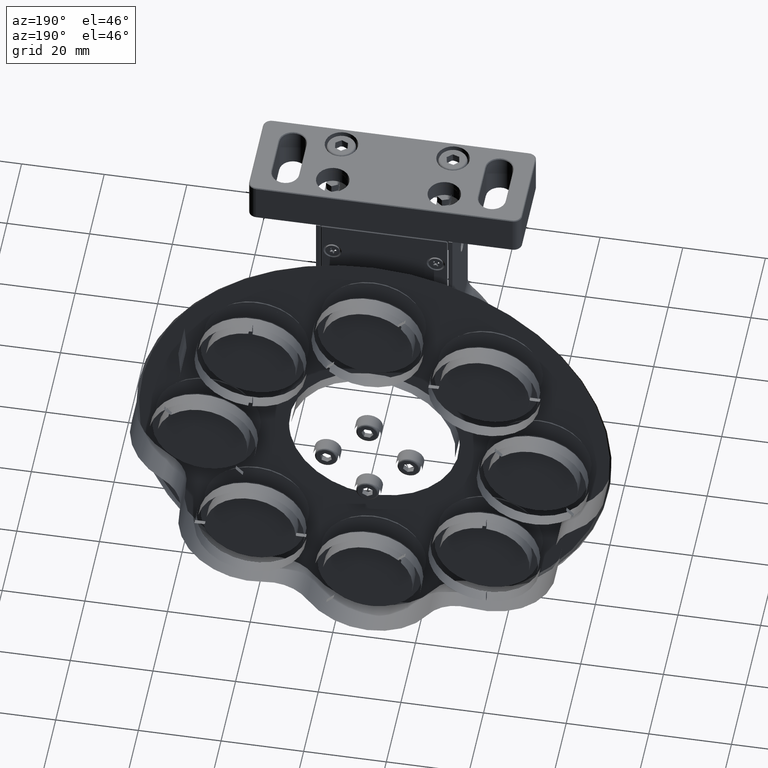
[diagram: clean part render]
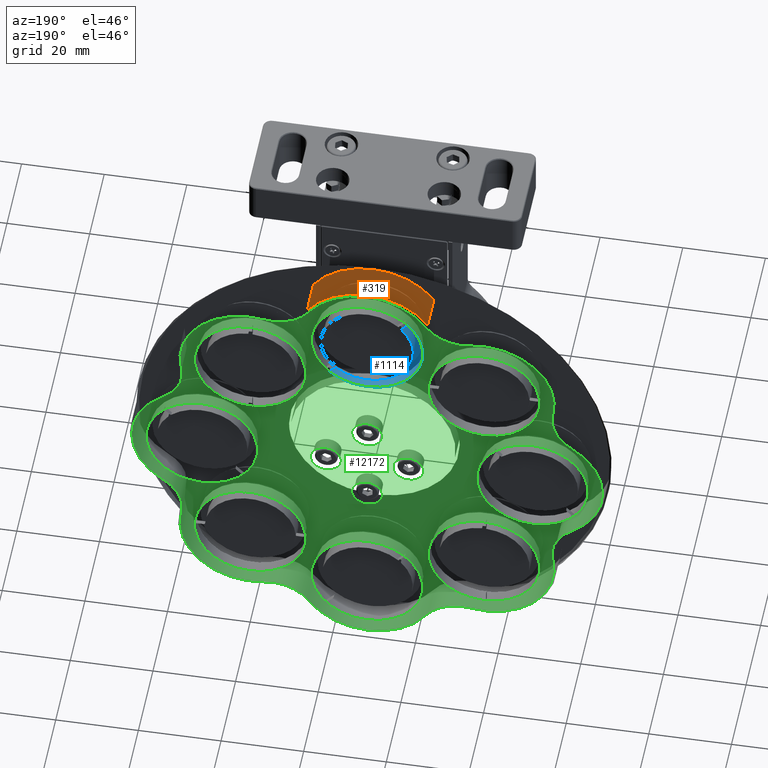
[diagram: same view with three faces highlighted in distinct colors, each labeled with its STEP entity id]
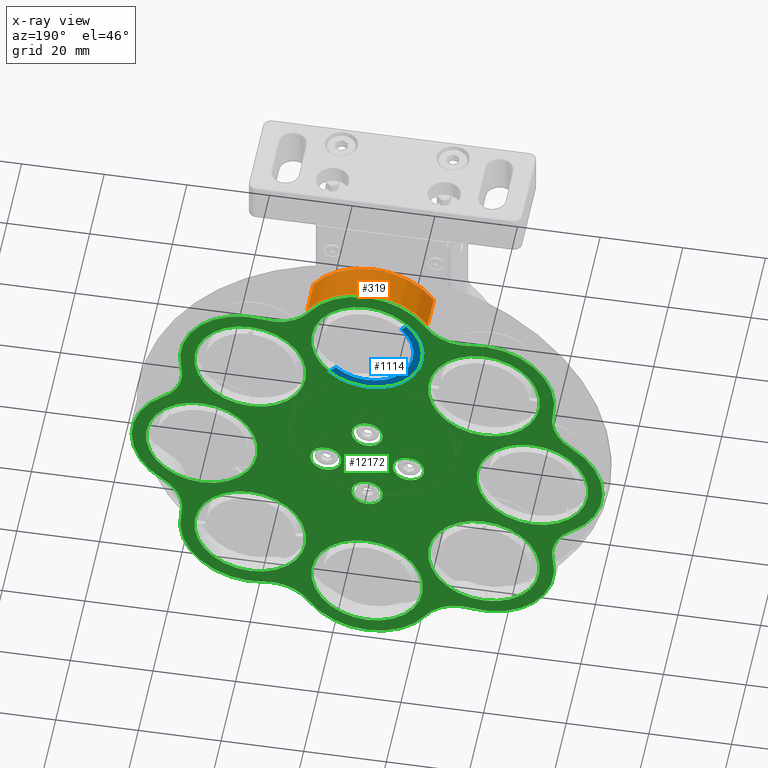
[diagram: x-ray of the same camera — body ghosted, the three highlighted faces saturated]
A machine part, auxiliary view with three faces highlighted in distinct colors.
The next image is the same camera in x-ray (body ghosted, the three faces saturated) — at least one of them is partly hidden behind the body in this view.
Their STEP definitions:

[orange] entity #319 — the highlighted cylindrical surface (partial cylindrical patch) has radius 17.5 mm, axis along (-0, 1, 0).
#319 = ADVANCED_FACE ( 'NONE', ( #4804 ), #15192, .F. ) ;
#325 = LINE ( 'NONE', #6182, #2610 ) ;
#646 = CARTESIAN_POINT ( 'NONE',  ( -28.43780630113397123, 31.75879132876270461, 109.9999999999999858 ) ) ;
#1087 = EDGE_CURVE ( 'NONE', #18098, #9240, #13332, .T. ) ;
#1279 = ORIENTED_EDGE ( 'NONE', *, *, #10703, .T. ) ;
#1571 = CARTESIAN_POINT ( 'NONE',  ( -13.87469742252363325, 40.25879132876270461, 119.7039095105911173 ) ) ;
#1682 = CARTESIAN_POINT ( 'NONE',  ( -43.00091517978494693, 31.75879132876270461, 119.7039095105301101 ) ) ;
#1919 = CARTESIAN_POINT ( 'NONE',  ( -28.43780630113397123, 31.75879132876270461, 109.9999999999999858 ) ) ;
#2325 = EDGE_CURVE ( 'NONE', #15463, #18098, #8673, .T. ) ;
#2410 = ORIENTED_EDGE ( 'NONE', *, *, #5267, .F. ) ;
#2610 = VECTOR ( 'NONE', #13592, 1000.000000000000000 ) ;
#3140 = DIRECTION ( 'NONE',  ( 3.488278094132890012E-29, -1.000000000000000000, 0.000000000000000000 ) ) ;
#3735 = DIRECTION ( 'NONE',  ( -1.000000000000000000, 0.000000000000000000, 0.000000000000000000 ) ) ;
#4302 = EDGE_LOOP ( 'NONE', ( #1279, #5757, #11857, #2410, #10061 ) ) ;
#4378 = CARTESIAN_POINT ( 'NONE',  ( -28.43780630113397123, 40.25879132876270461, 109.9999999999999858 ) ) ;
#4804 = FACE_OUTER_BOUND ( 'NONE', #4302, .T. ) ;
#5267 = EDGE_CURVE ( 'NONE', #5414, #15463, #325, .T. ) ;
#5414 = VERTEX_POINT ( 'NONE', #7796 ) ;
#5757 = ORIENTED_EDGE ( 'NONE', *, *, #1087, .F. ) ;
#5901 = DIRECTION ( 'NONE',  ( 3.488278094132890012E-29, -1.000000000000000000, -0.000000000000000000 ) ) ;
#5915 = CARTESIAN_POINT ( 'NONE',  ( -43.00091517978494693, 31.75879132876270461, 119.7039095105301101 ) ) ;
#6182 = CARTESIAN_POINT ( 'NONE',  ( -13.87469742252364213, 31.75879132876270461, 119.7039095105911173 ) ) ;
#6655 = AXIS2_PLACEMENT_3D ( 'NONE', #1919, #7771, #3735 ) ;
#6956 = AXIS2_PLACEMENT_3D ( 'NONE', #646, #16610, #9303 ) ;
#7359 = DIRECTION ( 'NONE',  ( -1.000000000000000000, 0.000000000000000000, 0.000000000000000000 ) ) ;
#7771 = DIRECTION ( 'NONE',  ( -3.488278094132890012E-29, 1.000000000000000000, 0.000000000000000000 ) ) ;
#7796 = CARTESIAN_POINT ( 'NONE',  ( -13.87469742252362970, 31.75879132876270461, 119.7039095105911173 ) ) ;
#8541 = AXIS2_PLACEMENT_3D ( 'NONE', #13195, #11754, #17599 ) ;
#8673 = CIRCLE ( 'NONE', #17876, 17.50000000000000355 ) ;
#9160 = EDGE_CURVE ( 'NONE', #5414, #18571, #10021, .T. ) ;
#9240 = VERTEX_POINT ( 'NONE', #1682 ) ;
#9303 = DIRECTION ( 'NONE',  ( -1.000000000000000000, 0.000000000000000000, -3.172065784643303781E-15 ) ) ;
#10021 = CIRCLE ( 'NONE', #6956, 17.50000000000000355 ) ;
#10061 = ORIENTED_EDGE ( 'NONE', *, *, #9160, .T. ) ;
#10703 = EDGE_CURVE ( 'NONE', #18571, #9240, #14064, .T. ) ;
#11754 = DIRECTION ( 'NONE',  ( 3.488278094132890012E-29, -1.000000000000000000, -0.000000000000000000 ) ) ;
#11857 = ORIENTED_EDGE ( 'NONE', *, *, #2325, .F. ) ;
#12867 = CARTESIAN_POINT ( 'NONE',  ( -28.43780630117061747, 31.75879132876270461, 127.5000000000000000 ) ) ;
#13195 = CARTESIAN_POINT ( 'NONE',  ( -28.43780630113397123, 31.75879132876270461, 109.9999999999999858 ) ) ;
#13332 = LINE ( 'NONE', #5915, #15550 ) ;
#13592 = DIRECTION ( 'NONE',  ( -3.488278094132890012E-29, 1.000000000000000000, 0.000000000000000000 ) ) ;
#14064 = CIRCLE ( 'NONE', #8541, 17.50000000000000355 ) ;
#15192 = CYLINDRICAL_SURFACE ( 'NONE', #6655, 17.50000000000000355 ) ;
#15463 = VERTEX_POINT ( 'NONE', #1571 ) ;
#15550 = VECTOR ( 'NONE', #3140, 1000.000000000000000 ) ;
#16610 = DIRECTION ( 'NONE',  ( 3.488278094132890012E-29, -1.000000000000000000, -0.000000000000000000 ) ) ;
#17599 = DIRECTION ( 'NONE',  ( -1.000000000000000000, 0.000000000000000000, 7.930164461608259453E-16 ) ) ;
#17876 = AXIS2_PLACEMENT_3D ( 'NONE', #4378, #5901, #7359 ) ;
#18098 = VERTEX_POINT ( 'NONE', #18222 ) ;
#18222 = CARTESIAN_POINT ( 'NONE',  ( -43.00091517978494693, 40.25879132876270461, 119.7039095105301101 ) ) ;
#18571 = VERTEX_POINT ( 'NONE', #12867 ) ;

[blue] entity #1114 — the highlighted planar face has unit normal (-0, 1, -0).
#486 = VERTEX_POINT ( 'NONE', #13128 ) ;
#493 = VECTOR ( 'NONE', #8935, 1000.000000000000114 ) ;
#554 = DIRECTION ( 'NONE',  ( 0.7071067811879899745, 0.000000000000000000, -0.7071067811851051710 ) ) ;
#886 = CIRCLE ( 'NONE', #1812, 11.20000000000002949 ) ;
#1114 = ADVANCED_FACE ( 'NONE', ( #10168 ), #8994, .F. ) ;
#1142 = CARTESIAN_POINT ( 'NONE',  ( -38.33075170616002936, 40.75879132876271171, 119.1858386251536217 ) ) ;
#1401 = CIRCLE ( 'NONE', #6916, 13.50000000000000888 ) ;
#1783 = ORIENTED_EDGE ( 'NONE', *, *, #14530, .F. ) ;
#1812 = AXIS2_PLACEMENT_3D ( 'NONE', #4740, #9164, #6265 ) ;
#2182 = DIRECTION ( 'NONE',  ( -3.488278094132891133E-29, 1.000000000000000000, -9.908676466028872705E-46 ) ) ;
#2862 = DIRECTION ( 'NONE',  ( -1.000000000000000000, -3.488278094132890573E-29, 0.000000000000000000 ) ) ;
#2960 = EDGE_LOOP ( 'NONE', ( #9335, #15163, #1783, #18691 ) ) ;
#3718 = CARTESIAN_POINT ( 'NONE',  ( -28.43780630137815990, 40.75879132876270461, 110.0000000015980390 ) ) ;
#4207 = DIRECTION ( 'NONE',  ( -3.488278094132890573E-29, 1.000000000000000000, -5.605193857299268284E-45 ) ) ;
#4740 = CARTESIAN_POINT ( 'NONE',  ( -28.43780630137815990, 40.75879132876274014, 110.0000000015980390 ) ) ;
#4895 = VERTEX_POINT ( 'NONE', #18653 ) ;
#5100 = CARTESIAN_POINT ( 'NONE',  ( -20.87965949540976140, 40.75879132876272593, 101.7347464144763904 ) ) ;
#5347 = CARTESIAN_POINT ( 'NONE',  ( -38.33075170616005778, 40.75879132876271171, 119.1858386251536501 ) ) ;
#6265 = DIRECTION ( 'NONE',  ( 9.293161478447156352E-16, 0.000000000000000000, 1.000000000000000000 ) ) ;
#6424 = VECTOR ( 'NONE', #554, 1000.000000000000114 ) ;
#6700 = EDGE_CURVE ( 'NONE', #8764, #486, #16066, .T. ) ;
#6916 = AXIS2_PLACEMENT_3D ( 'NONE', #3718, #2182, #17075 ) ;
#6972 = VERTEX_POINT ( 'NONE', #1142 ) ;
#8764 = VERTEX_POINT ( 'NONE', #5100 ) ;
#8935 = DIRECTION ( 'NONE',  ( 0.7071067811880396015, 0.000000000000000000, -0.7071067811850553220 ) ) ;
#8994 = PLANE ( 'NONE',  #13087 ) ;
#9164 = DIRECTION ( 'NONE',  ( -0.000000000000000000, -1.000000000000000000, -0.000000000000000000 ) ) ;
#9335 = ORIENTED_EDGE ( 'NONE', *, *, #6700, .F. ) ;
#10077 = CARTESIAN_POINT ( 'NONE',  ( -28.43780630137815990, 40.75879132876271171, 110.0000000015980390 ) ) ;
#10168 = FACE_OUTER_BOUND ( 'NONE', #2960, .T. ) ;
#11653 = EDGE_CURVE ( 'NONE', #4895, #8764, #886, .T. ) ;
#12672 = LINE ( 'NONE', #5347, #6424 ) ;
#13087 = AXIS2_PLACEMENT_3D ( 'NONE', #10077, #4207, #2862 ) ;
#13128 = CARTESIAN_POINT ( 'NONE',  ( -19.25196767778115259, 40.75879132876270461, 100.1070545968546526 ) ) ;
#14530 = EDGE_CURVE ( 'NONE', #6972, #4895, #12672, .T. ) ;
#14626 = CARTESIAN_POINT ( 'NONE',  ( -20.87965949540985378, 40.75879132876271171, 101.7347464144764757 ) ) ;
#15163 = ORIENTED_EDGE ( 'NONE', *, *, #11653, .F. ) ;
#16066 = LINE ( 'NONE', #14626, #493 ) ;
#16629 = EDGE_CURVE ( 'NONE', #486, #6972, #1401, .T. ) ;
#17075 = DIRECTION ( 'NONE',  ( 1.000000000000000000, 0.000000000000000000, 1.027984282060329370E-15 ) ) ;
#18653 = CARTESIAN_POINT ( 'NONE',  ( -36.70305988853162660, 40.75879132876274014, 117.5581468075318838 ) ) ;
#18691 = ORIENTED_EDGE ( 'NONE', *, *, #16629, .F. ) ;

[green] entity #12172 — the highlighted planar face has unit normal (-0, 1, 0).
#21 = EDGE_CURVE ( 'NONE', #16468, #16468, #17086, .T. ) ;
#65 = ORIENTED_EDGE ( 'NONE', *, *, #6076, .F. ) ;
#163 = FACE_BOUND ( 'NONE', #11233, .T. ) ;
#336 = CARTESIAN_POINT ( 'NONE',  ( -0.1535350535292051566, 40.75879132876270461, 41.71572875259717250 ) ) ;
#388 = VERTEX_POINT ( 'NONE', #17985 ) ;
#484 = DIRECTION ( 'NONE',  ( 0.000000000000000000, 0.000000000000000000, -1.000000000000000000 ) ) ;
#529 = AXIS2_PLACEMENT_3D ( 'NONE', #8786, #3026, #17621 ) ;
#748 = DIRECTION ( 'NONE',  ( 0.000000000000000000, 0.000000000000000000, 1.000000000000000000 ) ) ;
#854 = CARTESIAN_POINT ( 'NONE',  ( -51.32269168187121267, 40.75879132876261934, 125.2490006594044729 ) ) ;
#859 = AXIS2_PLACEMENT_3D ( 'NONE', #12819, #18685, #5498 ) ;
#900 = VERTEX_POINT ( 'NONE', #6464 ) ;
#930 = ORIENTED_EDGE ( 'NONE', *, *, #10571, .F. ) ;
#947 = ORIENTED_EDGE ( 'NONE', *, *, #18915, .F. ) ;
#950 = VERTEX_POINT ( 'NONE', #3727 ) ;
#1098 = CIRCLE ( 'NONE', #11541, 10.49999999999998934 ) ;
#1117 = CARTESIAN_POINT ( 'NONE',  ( 16.51557040114889219, 40.75879132876270461, 45.05353092480893196 ) ) ;
#1129 = CARTESIAN_POINT ( 'NONE',  ( -42.58482635468069333, 40.75879132876264066, 119.4266549530864552 ) ) ;
#1204 = EDGE_CURVE ( 'NONE', #2343, #9575, #16161, .T. ) ;
#1334 = CIRCLE ( 'NONE', #13917, 13.49999999999998401 ) ;
#1479 = DIRECTION ( 'NONE',  ( 0.000000000000000000, 0.000000000000000000, -1.000000000000000000 ) ) ;
#1501 = DIRECTION ( 'NONE',  ( -0.000000000000000000, -1.000000000000000000, -0.000000000000000000 ) ) ;
#1544 = AXIS2_PLACEMENT_3D ( 'NONE', #12406, #18262, #15578 ) ;
#1578 = CARTESIAN_POINT ( 'NONE',  ( -28.43780630113369412, 40.75879132876270461, 109.9999999999999858 ) ) ;
#1608 = VERTEX_POINT ( 'NONE', #6848 ) ;
#1623 = DIRECTION ( 'NONE',  ( -0.000000000000000000, -1.000000000000000000, -0.000000000000000000 ) ) ;
#1652 = CARTESIAN_POINT ( 'NONE',  ( -77.86446125419595887, 40.75879132876270461, 84.14702005342337543 ) ) ;
#1654 = CIRCLE ( 'NONE', #4726, 10.49999999999999467 ) ;
#1656 = DIRECTION ( 'NONE',  ( 0.000000000000000000, -1.000000000000000000, 0.000000000000000000 ) ) ;
#1680 = DIRECTION ( 'NONE',  ( 0.000000000000000000, 0.000000000000000000, 1.000000000000000000 ) ) ;
#1709 = CARTESIAN_POINT ( 'NONE',  ( -28.43780630105019824, 40.75879132876270461, 69.99999999999998579 ) ) ;
#1717 = CARTESIAN_POINT ( 'NONE',  ( -53.38427537624115615, 40.75879132876269750, 25.04662329780063246 ) ) ;
#1825 = ORIENTED_EDGE ( 'NONE', *, *, #13588, .F. ) ;
#1887 = VERTEX_POINT ( 'NONE', #1652 ) ;
#2132 = CARTESIAN_POINT ( 'NONE',  ( -38.43780630105018759, 40.75879132885231115, 69.99999999997926636 ) ) ;
#2343 = VERTEX_POINT ( 'NONE', #8618 ) ;
#2432 = AXIS2_PLACEMENT_3D ( 'NONE', #1709, #2873, #4596 ) ;
#2474 = CARTESIAN_POINT ( 'NONE',  ( -53.38427537642942156, 40.75879132876263355, 114.9533767020948716 ) ) ;
#2482 = DIRECTION ( 'NONE',  ( -0.000000000000000000, -1.000000000000000000, -0.000000000000000000 ) ) ;
#2527 = EDGE_CURVE ( 'NONE', #1608, #17449, #7133, .T. ) ;
#2567 = CARTESIAN_POINT ( 'NONE',  ( -28.43780630107103136, 40.75879132878371536, 79.99999999999998579 ) ) ;
#2617 = VERTEX_POINT ( 'NONE', #14538 ) ;
#2777 = CIRCLE ( 'NONE', #17188, 10.49999999999999467 ) ;
#2782 = FACE_BOUND ( 'NONE', #9124, .T. ) ;
#2813 = VERTEX_POINT ( 'NONE', #8668 ) ;
#2860 = ORIENTED_EDGE ( 'NONE', *, *, #7160, .F. ) ;
#2873 = DIRECTION ( 'NONE',  ( -3.488278094132890012E-29, 1.000000000000000000, 0.000000000000000000 ) ) ;
#3007 = CARTESIAN_POINT ( 'NONE',  ( -56.72207754857138440, 40.75879132876270461, 111.7842712474027564 ) ) ;
#3026 = DIRECTION ( 'NONE',  ( -0.000000000000000000, -1.000000000000000000, -0.000000000000000000 ) ) ;
#3027 = CARTESIAN_POINT ( 'NONE',  ( -14.29078624742006731, 40.75879132876269040, 20.57334504691351285 ) ) ;
#3110 = DIRECTION ( 'NONE',  ( -0.000000000000000000, -1.000000000000000000, -0.000000000000000000 ) ) ;
#3180 = VERTEX_POINT ( 'NONE', #9039 ) ;
#3304 = CIRCLE ( 'NONE', #859, 3.749999999968167685 ) ;
#3325 = EDGE_LOOP ( 'NONE', ( #10336 ) ) ;
#3359 = CIRCLE ( 'NONE', #4297, 3.749999999968167685 ) ;
#3466 = CARTESIAN_POINT ( 'NONE',  ( -56.72207754857138440, 40.75879132876270461, 98.28427124740275644 ) ) ;
#3539 = EDGE_CURVE ( 'NONE', #900, #900, #1334, .T. ) ;
#3616 = CARTESIAN_POINT ( 'NONE',  ( -73.39118300314481758, 40.75879132876271171, 45.05353092462058129 ) ) ;
#3651 = CARTESIAN_POINT ( 'NONE',  ( -3.491337225671252931, 40.75879132876269750, 25.04662329790512132 ) ) ;
#3662 = DIRECTION ( 'NONE',  ( 0.000000000000000000, -1.000000000000000000, 0.000000000000000000 ) ) ;
#3691 = CIRCLE ( 'NONE', #16877, 17.00000000000001421 ) ;
#3727 = CARTESIAN_POINT ( 'NONE',  ( 20.98884865209543804, 40.75879132876271171, 55.85297994657643983 ) ) ;
#3748 = CARTESIAN_POINT ( 'NONE',  ( 11.56219369894980531, 40.75879132876274014, 70.00000000008361667 ) ) ;
#3751 = DIRECTION ( 'NONE',  ( 2.643388153869431848E-15, 0.000000000000000000, 1.000000000000000000 ) ) ;
#3937 = DIRECTION ( 'NONE',  ( -0.000000000000000000, -1.000000000000000000, -0.000000000000000000 ) ) ;
#4150 = CARTESIAN_POINT ( 'NONE',  ( -0.1535350536474473782, 40.75879132876270461, 111.7842712475210618 ) ) ;
#4153 = VERTEX_POINT ( 'NONE', #4834 ) ;
#4203 = DIRECTION ( 'NONE',  ( 0.000000000000000000, 0.000000000000000000, -1.000000000000000000 ) ) ;
#4297 = AXIS2_PLACEMENT_3D ( 'NONE', #2567, #18632, #11324 ) ;
#4312 = FACE_BOUND ( 'NONE', #16338, .T. ) ;
#4414 = ORIENTED_EDGE ( 'NONE', *, *, #1204, .F. ) ;
#4481 = EDGE_LOOP ( 'NONE', ( #12875 ) ) ;
#4491 = CIRCLE ( 'NONE', #17074, 10.49999999999995381 ) ;
#4534 = EDGE_LOOP ( 'NONE', ( #11906 ) ) ;
#4540 = CARTESIAN_POINT ( 'NONE',  ( -56.72207754857139150, 40.75879132876271171, 98.28427124740275644 ) ) ;
#4551 = AXIS2_PLACEMENT_3D ( 'NONE', #336, #9379, #18133 ) ;
#4568 = DIRECTION ( 'NONE',  ( 0.000000000000000000, -1.000000000000000000, 0.000000000000000000 ) ) ;
#4595 = DIRECTION ( 'NONE',  ( -0.000000000000000000, -1.000000000000000000, -0.000000000000000000 ) ) ;
#4596 = DIRECTION ( 'NONE',  ( -1.000000000000000000, -3.488278094132890012E-29, 0.000000000000000000 ) ) ;
#4644 = DIRECTION ( 'NONE',  ( 0.000000000000000000, 0.000000000000000000, 1.000000000000000000 ) ) ;
#4722 = EDGE_LOOP ( 'NONE', ( #17181 ) ) ;
#4726 = AXIS2_PLACEMENT_3D ( 'NONE', #18661, #1623, #10374 ) ;
#4757 = AXIS2_PLACEMENT_3D ( 'NONE', #8350, #18196, #11087 ) ;
#4778 = AXIS2_PLACEMENT_3D ( 'NONE', #854, #2482, #748 ) ;
#4793 = ORIENTED_EDGE ( 'NONE', *, *, #7631, .F. ) ;
#4834 = CARTESIAN_POINT ( 'NONE',  ( 20.98884865203627115, 40.75879132876272593, 84.14702005363022863 ) ) ;
#4934 = DIRECTION ( 'NONE',  ( 0.000000000000000000, 0.000000000000000000, 1.000000000000000000 ) ) ;
#5101 = CARTESIAN_POINT ( 'NONE',  ( -0.1535350535292086260, 40.75879132876269750, 41.71572875259718671 ) ) ;
#5170 = ORIENTED_EDGE ( 'NONE', *, *, #8896, .T. ) ;
#5199 = VERTEX_POINT ( 'NONE', #9622 ) ;
#5365 = CIRCLE ( 'NONE', #5962, 10.49999999999999467 ) ;
#5447 = AXIS2_PLACEMENT_3D ( 'NONE', #1578, #3110, #4644 ) ;
#5498 = DIRECTION ( 'NONE',  ( 0.000000000000000000, 0.000000000000000000, 1.000000000000000000 ) ) ;
#5566 = ORIENTED_EDGE ( 'NONE', *, *, #21, .F. ) ;
#5589 = VERTEX_POINT ( 'NONE', #18974 ) ;
#5692 = CARTESIAN_POINT ( 'NONE',  ( 11.56219369894980353, 40.75879132876270461, 70.00000000008363088 ) ) ;
#5829 = ORIENTED_EDGE ( 'NONE', *, *, #15750, .F. ) ;
#5835 = CARTESIAN_POINT ( 'NONE',  ( -28.43780630096670237, 40.75879132876270461, 30.00000000000006750 ) ) ;
#5836 = FACE_BOUND ( 'NONE', #3325, .T. ) ;
#5865 = CIRCLE ( 'NONE', #13562, 3.750000000025011104 ) ;
#5962 = AXIS2_PLACEMENT_3D ( 'NONE', #6718, #18747, #16914 ) ;
#6029 = FACE_BOUND ( 'NONE', #4481, .T. ) ;
#6076 = EDGE_CURVE ( 'NONE', #13430, #11606, #1098, .T. ) ;
#6164 = EDGE_LOOP ( 'NONE', ( #16669 ) ) ;
#6325 = AXIS2_PLACEMENT_3D ( 'NONE', #7532, #14763, #17734 ) ;
#6464 = CARTESIAN_POINT ( 'NONE',  ( -56.72207754845272376, 40.75879132876268329, 55.21572875247869661 ) ) ;
#6636 = AXIS2_PLACEMENT_3D ( 'NONE', #3748, #16638, #9616 ) ;
#6663 = AXIS2_PLACEMENT_3D ( 'NONE', #12440, #10999, #18299 ) ;
#6718 = CARTESIAN_POINT ( 'NONE',  ( -83.68680696055062640, 40.75879132876270461, 92.88488538058958000 ) ) ;
#6848 = CARTESIAN_POINT ( 'NONE',  ( 16.51557040104460583, 40.75879132876271171, 94.94646907537909897 ) ) ;
#7133 = CIRCLE ( 'NONE', #16659, 17.00000000000000000 ) ;
#7160 = EDGE_CURVE ( 'NONE', #18759, #18562, #9047, .T. ) ;
#7380 = CIRCLE ( 'NONE', #13178, 13.49999999999996980 ) ;
#7466 = FACE_BOUND ( 'NONE', #4722, .T. ) ;
#7532 = CARTESIAN_POINT ( 'NONE',  ( -28.43780630096670237, 40.75879132876268329, 30.00000000000006750 ) ) ;
#7577 = CIRCLE ( 'NONE', #529, 3.750000000012132517 ) ;
#7619 = CIRCLE ( 'NONE', #4551, 13.49999999999998401 ) ;
#7631 = EDGE_CURVE ( 'NONE', #1887, #17209, #5365, .T. ) ;
#7807 = CARTESIAN_POINT ( 'NONE',  ( 11.56219369894980353, 40.75879132876270461, 83.50000000008361667 ) ) ;
#7839 = CIRCLE ( 'NONE', #15533, 13.49999999999998401 ) ;
#7846 = EDGE_CURVE ( 'NONE', #5589, #5589, #7839, .T. ) ;
#7867 = CIRCLE ( 'NONE', #6325, 17.00000000000003197 ) ;
#7871 = CIRCLE ( 'NONE', #6636, 16.99999999999997868 ) ;
#7945 = AXIS2_PLACEMENT_3D ( 'NONE', #11156, #8164, #18269 ) ;
#8029 = ORIENTED_EDGE ( 'NONE', *, *, #17613, .F. ) ;
#8164 = DIRECTION ( 'NONE',  ( 0.000000000000000000, -1.000000000000000000, 0.000000000000000000 ) ) ;
#8350 = CARTESIAN_POINT ( 'NONE',  ( -83.68680696045460365, 40.75879132876269750, 47.11511461917883992 ) ) ;
#8530 = CIRCLE ( 'NONE', #5447, 13.49999999999998401 ) ;
#8561 = ORIENTED_EDGE ( 'NONE', *, *, #13547, .T. ) ;
#8618 = CARTESIAN_POINT ( 'NONE',  ( -42.58482635447377618, 40.75879132876268329, 20.57334504685418608 ) ) ;
#8648 = CIRCLE ( 'NONE', #11419, 17.00000000000001421 ) ;
#8668 = CARTESIAN_POINT ( 'NONE',  ( -0.1535350535292051566, 40.75879132876270461, 55.21572875259715829 ) ) ;
#8773 = EDGE_CURVE ( 'NONE', #11671, #11671, #11869, .T. ) ;
#8786 = CARTESIAN_POINT ( 'NONE',  ( -28.43780630102932605, 40.75879132881254918, 60.00000000000006395 ) ) ;
#8828 = FACE_OUTER_BOUND ( 'NONE', #14878, .T. ) ;
#8839 = AXIS2_PLACEMENT_3D ( 'NONE', #5101, #3662, #484 ) ;
#8842 = ORIENTED_EDGE ( 'NONE', *, *, #11300, .F. ) ;
#8896 = EDGE_CURVE ( 'NONE', #950, #4153, #7871, .T. ) ;
#8918 = FACE_BOUND ( 'NONE', #17754, .T. ) ;
#9004 = FACE_BOUND ( 'NONE', #6164, .T. ) ;
#9039 = CARTESIAN_POINT ( 'NONE',  ( -38.43780630105018759, 40.75879132885231115, 73.75000000000427747 ) ) ;
#9047 = CIRCLE ( 'NONE', #4757, 10.49999999999998224 ) ;
#9124 = EDGE_LOOP ( 'NONE', ( #5566 ) ) ;
#9290 = ORIENTED_EDGE ( 'NONE', *, *, #7846, .F. ) ;
#9329 = DIRECTION ( 'NONE',  ( 0.000000000000000000, 0.000000000000000000, 1.000000000000000000 ) ) ;
#9379 = DIRECTION ( 'NONE',  ( -0.000000000000000000, -1.000000000000000000, -0.000000000000000000 ) ) ;
#9489 = EDGE_LOOP ( 'NONE', ( #12266 ) ) ;
#9575 = VERTEX_POINT ( 'NONE', #1717 ) ;
#9616 = DIRECTION ( 'NONE',  ( 0.000000000000000000, 0.000000000000000000, -1.000000000000000000 ) ) ;
#9622 = CARTESIAN_POINT ( 'NONE',  ( -28.43780630102932605, 40.75879132881254918, 63.75000000001220002 ) ) ;
#10129 = CARTESIAN_POINT ( 'NONE',  ( -73.39118300324945210, 40.75879132876271171, 94.94646907519089041 ) ) ;
#10145 = CIRCLE ( 'NONE', #1544, 17.00000000000002132 ) ;
#10202 = EDGE_CURVE ( 'NONE', #2617, #2617, #8530, .T. ) ;
#10319 = AXIS2_PLACEMENT_3D ( 'NONE', #3466, #16921, #9329 ) ;
#10336 = ORIENTED_EDGE ( 'NONE', *, *, #13141, .F. ) ;
#10357 = EDGE_CURVE ( 'NONE', #11379, #11379, #14365, .T. ) ;
#10374 = DIRECTION ( 'NONE',  ( 0.000000000000000000, 0.000000000000000000, 1.000000000000000000 ) ) ;
#10433 = DIRECTION ( 'NONE',  ( 0.000000000000000000, 0.000000000000000000, -1.000000000000000000 ) ) ;
#10571 = EDGE_CURVE ( 'NONE', #12918, #12918, #3304, .T. ) ;
#10581 = CARTESIAN_POINT ( 'NONE',  ( -68.43780630105020180, 40.75879132876269040, 83.49999999991619859 ) ) ;
#10631 = EDGE_LOOP ( 'NONE', ( #930 ) ) ;
#10633 = CARTESIAN_POINT ( 'NONE',  ( -51.32269168163991679, 40.75879132876268329, 14.75099934049946881 ) ) ;
#10650 = CARTESIAN_POINT ( 'NONE',  ( -77.86446125413654329, 40.75879132876269750, 55.85297994636945162 ) ) ;
#10859 = EDGE_CURVE ( 'NONE', #13430, #17375, #15919, .T. ) ;
#10869 = DIRECTION ( 'NONE',  ( 0.000000000000000000, 0.000000000000000000, 1.000000000000000000 ) ) ;
#10999 = DIRECTION ( 'NONE',  ( -0.000000000000000000, -1.000000000000000000, -0.000000000000000000 ) ) ;
#11073 = CARTESIAN_POINT ( 'NONE',  ( -5.552920920460554299, 40.75879132876267619, 125.2490006595003393 ) ) ;
#11087 = DIRECTION ( 'NONE',  ( 0.000000000000000000, 0.000000000000000000, 1.000000000000000000 ) ) ;
#11156 = CARTESIAN_POINT ( 'NONE',  ( -28.43780630113397123, 40.75879132876266198, 109.9999999999999858 ) ) ;
#11233 = EDGE_LOOP ( 'NONE', ( #8842 ) ) ;
#11300 = EDGE_CURVE ( 'NONE', #2813, #2813, #7619, .T. ) ;
#11324 = DIRECTION ( 'NONE',  ( 0.000000000000000000, 0.000000000000000000, 1.000000000000000000 ) ) ;
#11356 = ORIENTED_EDGE ( 'NONE', *, *, #17407, .T. ) ;
#11379 = VERTEX_POINT ( 'NONE', #4150 ) ;
#11419 = AXIS2_PLACEMENT_3D ( 'NONE', #4540, #1656, #1479 ) ;
#11531 = DIRECTION ( 'NONE',  ( 9.912705577010330480E-16, 0.000000000000000000, 1.000000000000000000 ) ) ;
#11541 = AXIS2_PLACEMENT_3D ( 'NONE', #11703, #1501, #1680 ) ;
#11606 = VERTEX_POINT ( 'NONE', #3027 ) ;
#11620 = DIRECTION ( 'NONE',  ( 0.000000000000000000, -1.000000000000000000, 0.000000000000000000 ) ) ;
#11671 = VERTEX_POINT ( 'NONE', #3007 ) ;
#11703 = CARTESIAN_POINT ( 'NONE',  ( -5.552920920229561297, 40.75879132876270461, 14.75099934059534412 ) ) ;
#11789 = CARTESIAN_POINT ( 'NONE',  ( -3.491337225859219018, 40.75879132876269750, 114.9533767021991792 ) ) ;
#11830 = CARTESIAN_POINT ( 'NONE',  ( -14.29078624762673755, 40.75879132876266908, 119.4266549531456718 ) ) ;
#11869 = CIRCLE ( 'NONE', #10319, 13.49999999999999822 ) ;
#11906 = ORIENTED_EDGE ( 'NONE', *, *, #8773, .F. ) ;
#11919 = FACE_BOUND ( 'NONE', #4534, .T. ) ;
#11963 = CIRCLE ( 'NONE', #7945, 17.00000000000005684 ) ;
#12172 = ADVANCED_FACE ( 'NONE', ( #8918, #14508, #9004, #5836, #2782, #6029, #14790, #11919, #14884, #7466, #163, #4312, #8828 ), #17762, .F. ) ;
#12188 = DIRECTION ( 'NONE',  ( -0.000000000000000000, -1.000000000000000000, -0.000000000000000000 ) ) ;
#12266 = ORIENTED_EDGE ( 'NONE', *, *, #10202, .F. ) ;
#12406 = CARTESIAN_POINT ( 'NONE',  ( -56.72207754845271666, 40.75879132876270461, 41.71572875247871082 ) ) ;
#12427 = DIRECTION ( 'NONE',  ( -0.000000000000000000, -1.000000000000000000, -0.000000000000000000 ) ) ;
#12440 = CARTESIAN_POINT ( 'NONE',  ( -0.1535350536474473782, 40.75879132876270461, 98.28427124752107602 ) ) ;
#12801 = AXIS2_PLACEMENT_3D ( 'NONE', #5692, #16276, #14546 ) ;
#12819 = CARTESIAN_POINT ( 'NONE',  ( -18.43780630105019824, 40.75879132881364342, 70.00000000002086153 ) ) ;
#12875 = ORIENTED_EDGE ( 'NONE', *, *, #10357, .F. ) ;
#12918 = VERTEX_POINT ( 'NONE', #15899 ) ;
#13077 = VERTEX_POINT ( 'NONE', #2474 ) ;
#13141 = EDGE_CURVE ( 'NONE', #388, #388, #3359, .T. ) ;
#13178 = AXIS2_PLACEMENT_3D ( 'NONE', #15485, #3937, #10869 ) ;
#13430 = VERTEX_POINT ( 'NONE', #3651 ) ;
#13508 = CARTESIAN_POINT ( 'NONE',  ( -0.1535350536474439087, 40.75879132876271882, 98.28427124752107602 ) ) ;
#13547 = EDGE_CURVE ( 'NONE', #18759, #9575, #10145, .T. ) ;
#13562 = AXIS2_PLACEMENT_3D ( 'NONE', #2132, #12427, #16742 ) ;
#13588 = EDGE_CURVE ( 'NONE', #1608, #4153, #2777, .T. ) ;
#13677 = CARTESIAN_POINT ( 'NONE',  ( -56.72207754845272376, 40.75879132876268329, 41.71572875247871082 ) ) ;
#13795 = EDGE_CURVE ( 'NONE', #14824, #14824, #7380, .T. ) ;
#13819 = EDGE_CURVE ( 'NONE', #16993, #14590, #11963, .T. ) ;
#13917 = AXIS2_PLACEMENT_3D ( 'NONE', #13677, #17899, #4934 ) ;
#14365 = CIRCLE ( 'NONE', #6663, 13.49999999999998401 ) ;
#14452 = ORIENTED_EDGE ( 'NONE', *, *, #13795, .F. ) ;
#14508 = FACE_BOUND ( 'NONE', #10631, .T. ) ;
#14538 = CARTESIAN_POINT ( 'NONE',  ( -28.43780630113369412, 40.75879132876270461, 123.4999999999999716 ) ) ;
#14546 = DIRECTION ( 'NONE',  ( 0.000000000000000000, 0.000000000000000000, 1.000000000000000000 ) ) ;
#14590 = VERTEX_POINT ( 'NONE', #1129 ) ;
#14670 = EDGE_CURVE ( 'NONE', #1887, #18562, #3691, .T. ) ;
#14763 = DIRECTION ( 'NONE',  ( 0.000000000000000000, -1.000000000000000000, 0.000000000000000000 ) ) ;
#14790 = FACE_BOUND ( 'NONE', #9489, .T. ) ;
#14824 = VERTEX_POINT ( 'NONE', #10581 ) ;
#14848 = ORIENTED_EDGE ( 'NONE', *, *, #15492, .T. ) ;
#14878 = EDGE_LOOP ( 'NONE', ( #16557, #8029, #16294, #17237, #14848, #4793, #15068, #2860, #8561, #4414, #11356, #65, #17543, #5829, #5170, #1825 ) ) ;
#14884 = FACE_BOUND ( 'NONE', #18062, .T. ) ;
#15068 = ORIENTED_EDGE ( 'NONE', *, *, #14670, .T. ) ;
#15357 = DIRECTION ( 'NONE',  ( 0.000000000000000000, 0.000000000000000000, 1.000000000000000000 ) ) ;
#15363 = EDGE_CURVE ( 'NONE', #3180, #3180, #5865, .T. ) ;
#15485 = CARTESIAN_POINT ( 'NONE',  ( -68.43780630105020180, 40.75879132876269040, 69.99999999991622701 ) ) ;
#15492 = EDGE_CURVE ( 'NONE', #13077, #17209, #8648, .T. ) ;
#15533 = AXIS2_PLACEMENT_3D ( 'NONE', #5835, #4595, #19036 ) ;
#15578 = DIRECTION ( 'NONE',  ( 0.000000000000000000, 0.000000000000000000, -1.000000000000000000 ) ) ;
#15750 = EDGE_CURVE ( 'NONE', #950, #17375, #1654, .T. ) ;
#15858 = CARTESIAN_POINT ( 'NONE',  ( 26.81119435835438125, 40.75879132876271171, 92.88488538082081902 ) ) ;
#15899 = CARTESIAN_POINT ( 'NONE',  ( -18.43780630105019824, 40.75879132881364342, 73.74999999998902922 ) ) ;
#15919 = CIRCLE ( 'NONE', #8839, 17.00000000000002487 ) ;
#16161 = CIRCLE ( 'NONE', #18931, 10.49999999999996803 ) ;
#16276 = DIRECTION ( 'NONE',  ( -0.000000000000000000, -1.000000000000000000, -0.000000000000000000 ) ) ;
#16294 = ORIENTED_EDGE ( 'NONE', *, *, #13819, .T. ) ;
#16338 = EDGE_LOOP ( 'NONE', ( #9290 ) ) ;
#16468 = VERTEX_POINT ( 'NONE', #7807 ) ;
#16557 = ORIENTED_EDGE ( 'NONE', *, *, #2527, .T. ) ;
#16638 = DIRECTION ( 'NONE',  ( 0.000000000000000000, -1.000000000000000000, 0.000000000000000000 ) ) ;
#16659 = AXIS2_PLACEMENT_3D ( 'NONE', #13508, #4568, #10433 ) ;
#16669 = ORIENTED_EDGE ( 'NONE', *, *, #15363, .F. ) ;
#16742 = DIRECTION ( 'NONE',  ( 0.000000000000000000, 0.000000000000000000, 1.000000000000000000 ) ) ;
#16871 = EDGE_CURVE ( 'NONE', #13077, #14590, #17365, .T. ) ;
#16877 = AXIS2_PLACEMENT_3D ( 'NONE', #17368, #11620, #4203 ) ;
#16914 = DIRECTION ( 'NONE',  ( -1.321694076934710796E-15, 0.000000000000000000, 1.000000000000000000 ) ) ;
#16921 = DIRECTION ( 'NONE',  ( -0.000000000000000000, -1.000000000000000000, -0.000000000000000000 ) ) ;
#16924 = DIRECTION ( 'NONE',  ( -6.902340764408267388E-28, -1.000000000000000000, 3.304235192336785373E-16 ) ) ;
#16993 = VERTEX_POINT ( 'NONE', #11830 ) ;
#17074 = AXIS2_PLACEMENT_3D ( 'NONE', #11073, #16924, #3751 ) ;
#17086 = CIRCLE ( 'NONE', #12801, 13.49999999999998401 ) ;
#17181 = ORIENTED_EDGE ( 'NONE', *, *, #3539, .F. ) ;
#17188 = AXIS2_PLACEMENT_3D ( 'NONE', #15858, #17475, #11531 ) ;
#17209 = VERTEX_POINT ( 'NONE', #10129 ) ;
#17237 = ORIENTED_EDGE ( 'NONE', *, *, #16871, .F. ) ;
#17365 = CIRCLE ( 'NONE', #4778, 10.49999999999989875 ) ;
#17368 = CARTESIAN_POINT ( 'NONE',  ( -68.43780630105020180, 40.75879132876271171, 69.99999999991622701 ) ) ;
#17375 = VERTEX_POINT ( 'NONE', #1117 ) ;
#17407 = EDGE_CURVE ( 'NONE', #2343, #11606, #7867, .T. ) ;
#17449 = VERTEX_POINT ( 'NONE', #11789 ) ;
#17475 = DIRECTION ( 'NONE',  ( -6.895789982284457213E-28, -1.000000000000000000, 3.304235192336775019E-16 ) ) ;
#17543 = ORIENTED_EDGE ( 'NONE', *, *, #10859, .T. ) ;
#17613 = EDGE_CURVE ( 'NONE', #16993, #17449, #4491, .T. ) ;
#17621 = DIRECTION ( 'NONE',  ( 0.000000000000000000, 0.000000000000000000, 1.000000000000000000 ) ) ;
#17734 = DIRECTION ( 'NONE',  ( 0.000000000000000000, 0.000000000000000000, -1.000000000000000000 ) ) ;
#17754 = EDGE_LOOP ( 'NONE', ( #947 ) ) ;
#17762 = PLANE ( 'NONE',  #2432 ) ;
#17899 = DIRECTION ( 'NONE',  ( -0.000000000000000000, -1.000000000000000000, -0.000000000000000000 ) ) ;
#17985 = CARTESIAN_POINT ( 'NONE',  ( -28.43780630107103136, 40.75879132878371536, 83.74999999996815347 ) ) ;
#18062 = EDGE_LOOP ( 'NONE', ( #14452 ) ) ;
#18133 = DIRECTION ( 'NONE',  ( 0.000000000000000000, 0.000000000000000000, 1.000000000000000000 ) ) ;
#18196 = DIRECTION ( 'NONE',  ( -0.000000000000000000, -1.000000000000000000, -0.000000000000000000 ) ) ;
#18262 = DIRECTION ( 'NONE',  ( 0.000000000000000000, -1.000000000000000000, 0.000000000000000000 ) ) ;
#18269 = DIRECTION ( 'NONE',  ( 0.000000000000000000, 0.000000000000000000, -1.000000000000000000 ) ) ;
#18299 = DIRECTION ( 'NONE',  ( 0.000000000000000000, 0.000000000000000000, 1.000000000000000000 ) ) ;
#18562 = VERTEX_POINT ( 'NONE', #10650 ) ;
#18632 = DIRECTION ( 'NONE',  ( -0.000000000000000000, -1.000000000000000000, -0.000000000000000000 ) ) ;
#18661 = CARTESIAN_POINT ( 'NONE',  ( 26.81119435845006649, 40.75879132876271171, 47.11511461941027079 ) ) ;
#18685 = DIRECTION ( 'NONE',  ( -0.000000000000000000, -1.000000000000000000, -0.000000000000000000 ) ) ;
#18747 = DIRECTION ( 'NONE',  ( -0.000000000000000000, -1.000000000000000000, -0.000000000000000000 ) ) ;
#18759 = VERTEX_POINT ( 'NONE', #3616 ) ;
#18915 = EDGE_CURVE ( 'NONE', #5199, #5199, #7577, .T. ) ;
#18931 = AXIS2_PLACEMENT_3D ( 'NONE', #10633, #12188, #15357 ) ;
#18974 = CARTESIAN_POINT ( 'NONE',  ( -28.43780630096670237, 40.75879132876270461, 43.50000000000004974 ) ) ;
#19036 = DIRECTION ( 'NONE',  ( 0.000000000000000000, 0.000000000000000000, 1.000000000000000000 ) ) ;